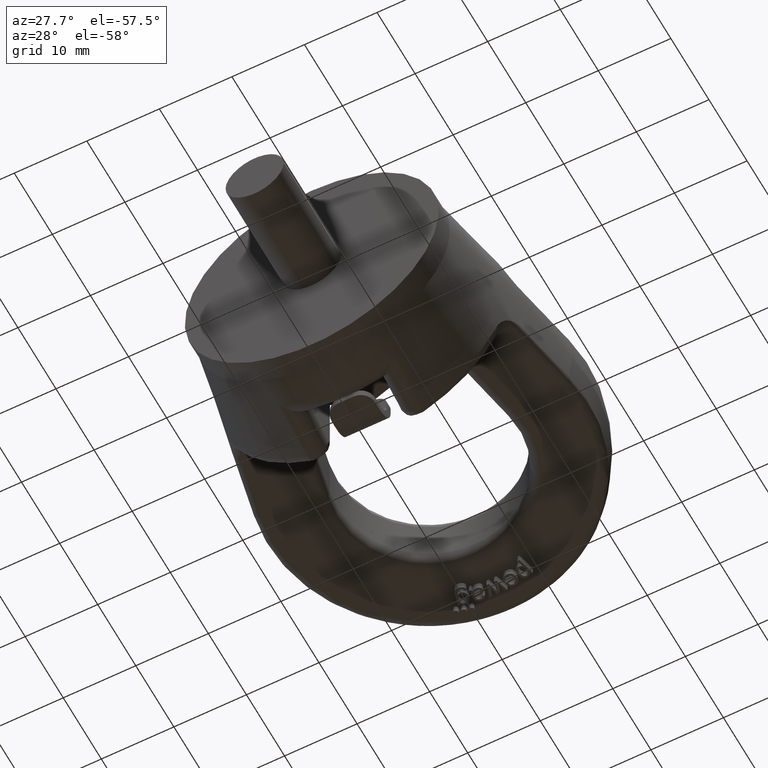
[diagram: clean part render]
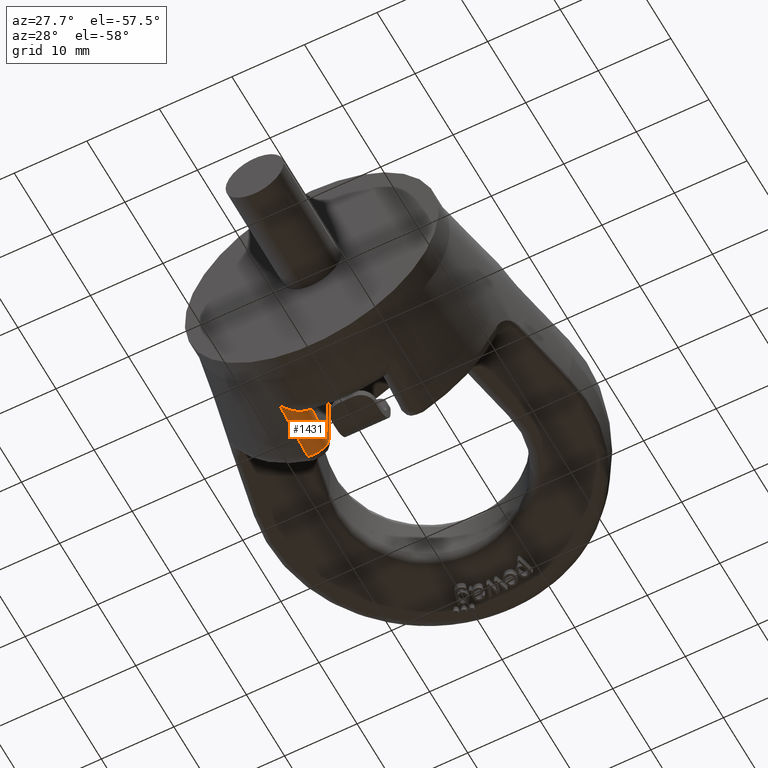
[diagram: same view with one face highlighted and labeled with its STEP entity id]
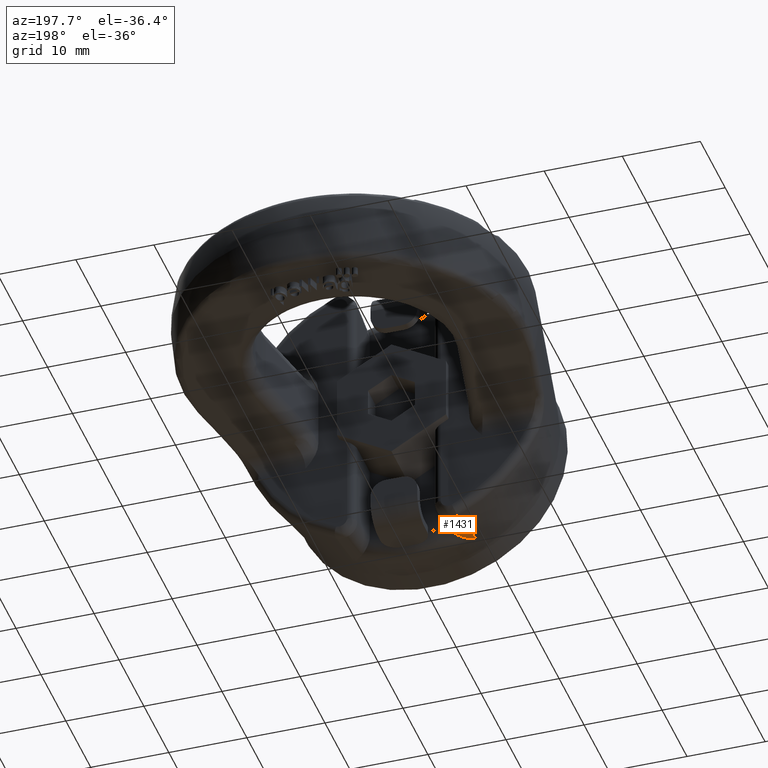
[diagram: same view with one face highlighted and labeled with its STEP entity id]
A machine part, auxiliary view. The second image highlights one B-rep face of the part: STEP entity #1431.
A second angle (auxiliary view) of the same face is appended — the face is thin or edge-on in the first view.
In plain terms, the highlighted face is a freeform B-spline surface patch.
Its self-contained STEP definition (entity closure, byte-faithful):
#1034=(
BOUNDED_SURFACE()
B_SPLINE_SURFACE(3,2,((#8500,#8501,#8502),(#8503,#8504,#8505),(#8506,#8507,
#8508),(#8509,#8510,#8511)),.UNSPECIFIED.,.F.,.F.,.F.)
B_SPLINE_SURFACE_WITH_KNOTS((4,4),(3,3),(0.,1.),(0.,1.),.UNSPECIFIED.)
GEOMETRIC_REPRESENTATION_ITEM()
RATIONAL_B_SPLINE_SURFACE(((1.,0.553043192885565,1.),(1.,0.548268393646193,
1.),(1.,0.543050021305376,1.),(1.,0.537230227295778,1.)))
REPRESENTATION_ITEM('')
SURFACE()
);
#1199=FACE_OUTER_BOUND('',#1962,.T.);
#1431=ADVANCED_FACE('',(#1199),#1034,.T.);
#1962=EDGE_LOOP('',(#3363,#3364,#3365,#3366,#3367));
#3363=ORIENTED_EDGE('',*,*,#4376,.F.);
#3364=ORIENTED_EDGE('',*,*,#4640,.T.);
#3365=ORIENTED_EDGE('',*,*,#4633,.F.);
#3366=ORIENTED_EDGE('',*,*,#4629,.F.);
#3367=ORIENTED_EDGE('',*,*,#4641,.F.);
#3986=VERTEX_POINT('',#6770);
#3987=VERTEX_POINT('',#6778);
#4145=VERTEX_POINT('',#8424);
#4146=VERTEX_POINT('',#8429);
#4149=VERTEX_POINT('',#8443);
#4376=EDGE_CURVE('',#3986,#3987,#4889,.T.);
#4629=EDGE_CURVE('',#4145,#4146,#5018,.T.);
#4633=EDGE_CURVE('',#4146,#4149,#5019,.T.);
#4640=EDGE_CURVE('',#3986,#4149,#5020,.T.);
#4641=EDGE_CURVE('',#3987,#4145,#5021,.T.);
#4889=B_SPLINE_CURVE_WITH_KNOTS('',3,(#6771,#6772,#6773,#6774,#6775,#6776,
#6777),.UNSPECIFIED.,.F.,.F.,(4,3,4),(0.,0.282710874215297,1.),
 .UNSPECIFIED.);
#5018=B_SPLINE_CURVE_WITH_KNOTS('',3,(#8425,#8426,#8427,#8428),
 .UNSPECIFIED.,.F.,.F.,(4,4),(0.,1.),.UNSPECIFIED.);
#5019=B_SPLINE_CURVE_WITH_KNOTS('',3,(#8436,#8437,#8438,#8439,#8440,#8441,
#8442),.UNSPECIFIED.,.F.,.F.,(4,3,4),(0.,0.631930813384993,1.),
 .UNSPECIFIED.);
#5020=B_SPLINE_CURVE_WITH_KNOTS('',3,(#8456,#8457,#8458,#8459,#8460,#8461,
#8462,#8463,#8464,#8465,#8466,#8467,#8468,#8469,#8470,#8471,#8472,#8473,
#8474,#8475,#8476,#8477),.UNSPECIFIED.,.F.,.F.,(4,3,3,3,3,3,3,4),(0.,0.133928404864079,
0.302695939539954,0.474599068808675,0.64951535594022,0.825375262726497,
0.980486463854062,1.),.UNSPECIFIED.);
#5021=B_SPLINE_CURVE_WITH_KNOTS('',3,(#8478,#8479,#8480,#8481,#8482,#8483,
#8484,#8485,#8486,#8487,#8488,#8489,#8490,#8491,#8492,#8493,#8494,#8495,
#8496,#8497,#8498,#8499),.UNSPECIFIED.,.F.,.F.,(4,3,3,3,3,3,3,4),(0.,0.00214897120328161,
0.263304851006406,0.500479002430735,0.671725861831771,0.781616117229978,
0.890708703950689,1.),.UNSPECIFIED.);
#6770=CARTESIAN_POINT('',(-7.7771029384059,13.8061051054376,-18.0299905012327));
#6771=CARTESIAN_POINT('',(-7.7771029384059,13.8061051054376,-18.0299905012327));
#6772=CARTESIAN_POINT('',(-7.7829973229986,13.1278379372851,-17.8814520000531));
#6773=CARTESIAN_POINT('',(-7.78902502892581,12.4496555064203,-17.7325311762808));
#6774=CARTESIAN_POINT('',(-7.79519545648807,11.7715661821499,-17.5831940555431));
#6775=CARTESIAN_POINT('',(-7.81085094026896,10.051131688593,-17.2042989387942));
#6776=CARTESIAN_POINT('',(-7.8274221933806,8.3312888668456,-16.8227381291895));
#6777=CARTESIAN_POINT('',(-7.84508998335061,6.61221021087525,-16.4378253155889));
#6778=CARTESIAN_POINT('',(-7.84508998335061,6.61221021087525,-16.4378253155889));
#8424=CARTESIAN_POINT('',(-5.02947864657077,9.,-15.4540733628964));
#8425=CARTESIAN_POINT('',(-5.02947864657077,9.,-15.4540733628964));
#8426=CARTESIAN_POINT('',(-5.00988896705683,9.,-15.3385965324202));
#8427=CARTESIAN_POINT('',(-4.99999999999995,9.,-15.2210587708847));
#8428=CARTESIAN_POINT('',(-4.99999999999996,9.,-15.1039321132858));
#8429=CARTESIAN_POINT('',(-4.99999999999996,9.,-15.1039321132858));
#8436=CARTESIAN_POINT('',(-4.99999999999996,9.,-15.1039321132858));
#8437=CARTESIAN_POINT('',(-4.99999999999996,10.0529351575066,-15.3333038463098));
#8438=CARTESIAN_POINT('',(-4.99999999999996,11.1060623558185,-15.5617953613358));
#8439=CARTESIAN_POINT('',(-4.99999999999996,12.1593559712747,-15.7895153592791));
#8440=CARTESIAN_POINT('',(-4.99999999999996,12.7728487162457,-15.9221512782413));
#8441=CARTESIAN_POINT('',(-4.99999999999996,13.3863981750096,-16.0545251071513));
#8442=CARTESIAN_POINT('',(-4.99999999999996,14.,-16.1866554802662));
#8443=CARTESIAN_POINT('',(-4.99999999999996,14.,-16.1866554802662));
#8456=CARTESIAN_POINT('',(-7.7771029384059,13.8061051054376,-18.0299905012327));
#8457=CARTESIAN_POINT('',(-7.61481691163708,13.798907686944,-18.0984421439251));
#8458=CARTESIAN_POINT('',(-7.44182365355114,13.7939387606553,-18.1457022288893));
#8459=CARTESIAN_POINT('',(-7.26714259996253,13.7914627588729,-18.1692518283979));
#8460=CARTESIAN_POINT('',(-7.04815941713302,13.7883588003161,-18.1987740126807));
#8461=CARTESIAN_POINT('',(-6.82111332433147,13.7891363898964,-18.1913779506711));
#8462=CARTESIAN_POINT('',(-6.60453940559602,13.7937307643983,-18.1476806082783));
#8463=CARTESIAN_POINT('',(-6.38404703824337,13.7984082644238,-18.1031926545696));
#8464=CARTESIAN_POINT('',(-6.16828289435201,13.807175002493,-18.0198123871593));
#8465=CARTESIAN_POINT('',(-5.97536078662157,13.819279986768,-17.904693010871));
#8466=CARTESIAN_POINT('',(-5.77913664635148,13.8315921585573,-17.7876032646188));
#8467=CARTESIAN_POINT('',(-5.60094169449929,13.8477111002948,-17.6343196894903));
#8468=CARTESIAN_POINT('',(-5.45599016141361,13.866231882745,-17.4582187379033));
#8469=CARTESIAN_POINT('',(-5.31026334176412,13.8848517252981,-17.2811758942319));
#8470=CARTESIAN_POINT('',(-5.19392944951213,13.9064341493447,-17.075985013786));
#8471=CARTESIAN_POINT('',(-5.11684234987081,13.9291116998479,-16.8604148842013));
#8472=CARTESIAN_POINT('',(-5.04862437783777,13.9491801226217,-16.669646816138));
#8473=CARTESIAN_POINT('',(-5.00931143825162,13.970579477657,-16.4662513342869));
#8474=CARTESIAN_POINT('',(-5.00149257094774,13.9918688332304,-16.2639285284868));
#8475=CARTESIAN_POINT('',(-5.00049770293155,13.9945776781465,-16.2381850952485));
#8476=CARTESIAN_POINT('',(-4.99999999999996,13.9972890669151,-16.2124179102729));
#8477=CARTESIAN_POINT('',(-4.99999999999996,14.,-16.1866554802662));
#8478=CARTESIAN_POINT('',(-7.84508998335061,6.61221021087525,-16.4378253155889));
#8479=CARTESIAN_POINT('',(-7.84309361045983,6.61422905099335,-16.4392202301996));
#8480=CARTESIAN_POINT('',(-7.84109573263246,6.61624863948092,-16.4406119126301));
#8481=CARTESIAN_POINT('',(-7.83909625092276,6.61826884616832,-16.4420003811193));
#8482=CARTESIAN_POINT('',(-7.59701694248342,6.86285734898776,-16.6101036901026));
#8483=CARTESIAN_POINT('',(-7.32901232236428,7.11999077076133,-16.7327234099428));
#8484=CARTESIAN_POINT('',(-7.05146689499657,7.37620561354923,-16.7960253835257));
#8485=CARTESIAN_POINT('',(-6.79965179582038,7.60866761682903,-16.8534588383191));
#8486=CARTESIAN_POINT('',(-6.53367155196111,7.84621775787492,-16.8632850007463));
#8487=CARTESIAN_POINT('',(-6.27389993937729,8.07044170306586,-16.8086008113485));
#8488=CARTESIAN_POINT('',(-6.08581174541839,8.23279153210921,-16.769006606579));
#8489=CARTESIAN_POINT('',(-5.89659544276004,8.39191883036952,-16.6941567851263));
#8490=CARTESIAN_POINT('',(-5.72318617312675,8.53197742191025,-16.5774727978387));
#8491=CARTESIAN_POINT('',(-5.61125808375302,8.62237910911348,-16.5021583940284));
#8492=CARTESIAN_POINT('',(-5.50407626415079,8.70627900051035,-16.407922390674));
#8493=CARTESIAN_POINT('',(-5.4094542195375,8.77652985549003,-16.2961900868887));
#8494=CARTESIAN_POINT('',(-5.31578068860086,8.84607649934199,-16.1855778140507));
#8495=CARTESIAN_POINT('',(-5.23257367463345,8.90350791159776,-16.0549192486996));
#8496=CARTESIAN_POINT('',(-5.16811869278172,8.9417880672774,-15.9126985541181));
#8497=CARTESIAN_POINT('',(-5.1036183005451,8.98009519242555,-15.7703776609749));
#8498=CARTESIAN_POINT('',(-5.05638647569189,9.,-15.6126890676449));
#8499=CARTESIAN_POINT('',(-5.02947864657077,9.,-15.4540733628964));
#8500=CARTESIAN_POINT('',(-4.99999999999996,14.2549272417783,-16.2415357979666));
#8501=CARTESIAN_POINT('',(-4.99999999999996,13.6209870725428,-19.18706403618));
#8502=CARTESIAN_POINT('',(-7.77657290721172,13.8671374526535,-18.0433553225681));
#8503=CARTESIAN_POINT('',(-4.99999999999996,11.8212787315699,-15.7177630062473));
#8504=CARTESIAN_POINT('',(-4.99999999999887,11.1551008739545,-18.6950110712432));
#8505=CARTESIAN_POINT('',(-7.79769335112895,11.4334881171063,-17.5104795744367));
#8506=CARTESIAN_POINT('',(-4.99999999999996,9.38841860477544,-15.1902378091423));
#8507=CARTESIAN_POINT('',(-4.99999999999996,8.70494826487809,-18.2064802195907));
#8508=CARTESIAN_POINT('',(-7.82051700233954,9.00062765342348,-16.9726907969482));
#8509=CARTESIAN_POINT('',(-4.99999999999997,6.95674869746485,-14.6576347166219));
#8510=CARTESIAN_POINT('',(-4.99999999999996,6.28494019925866,-17.724865326866));
#8511=CARTESIAN_POINT('',(-7.84553473151887,6.5689589083401,-16.4281403215963));